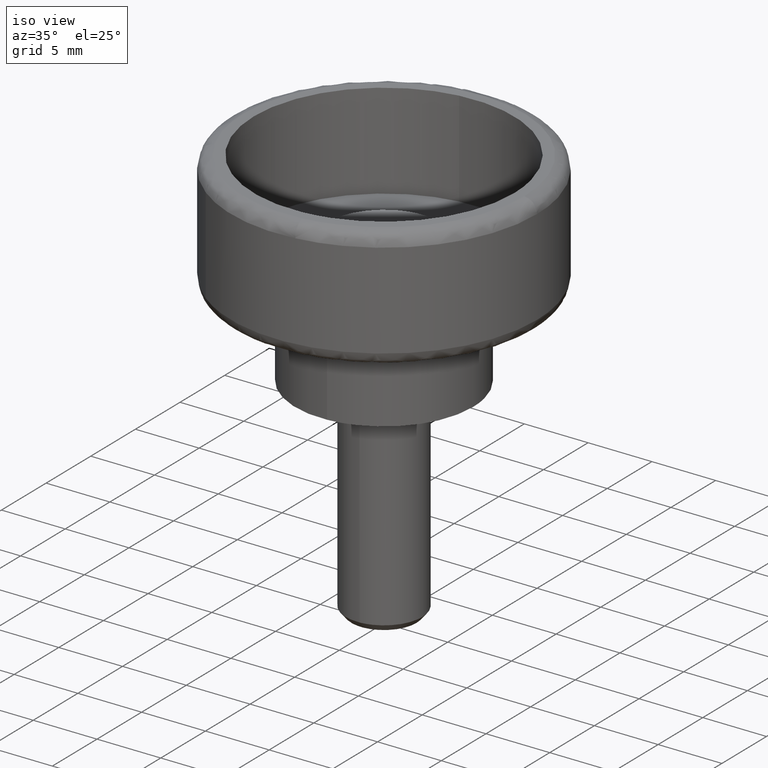
[diagram: clean part render]
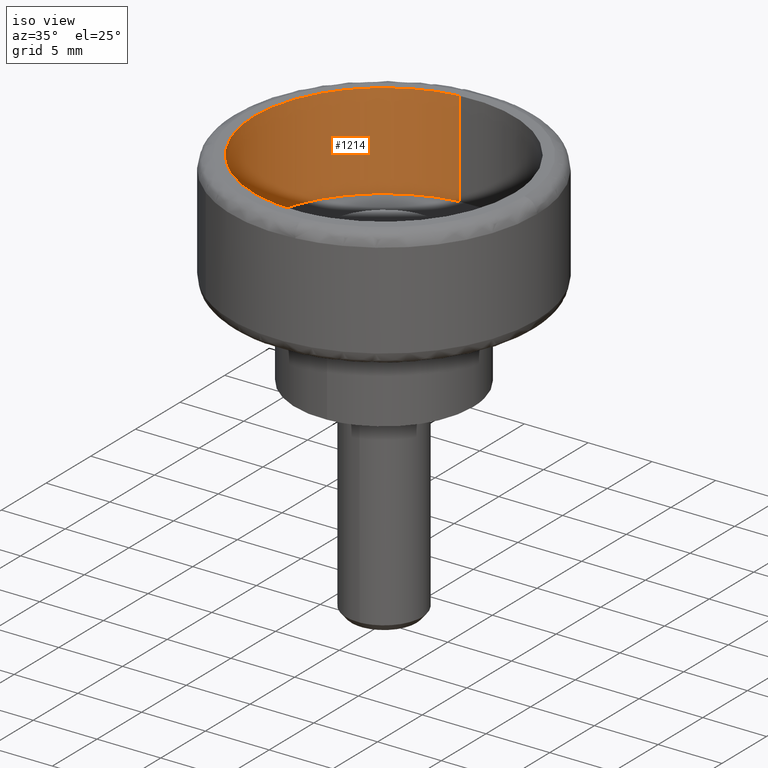
[diagram: same view with one face highlighted and labeled with its STEP entity id]
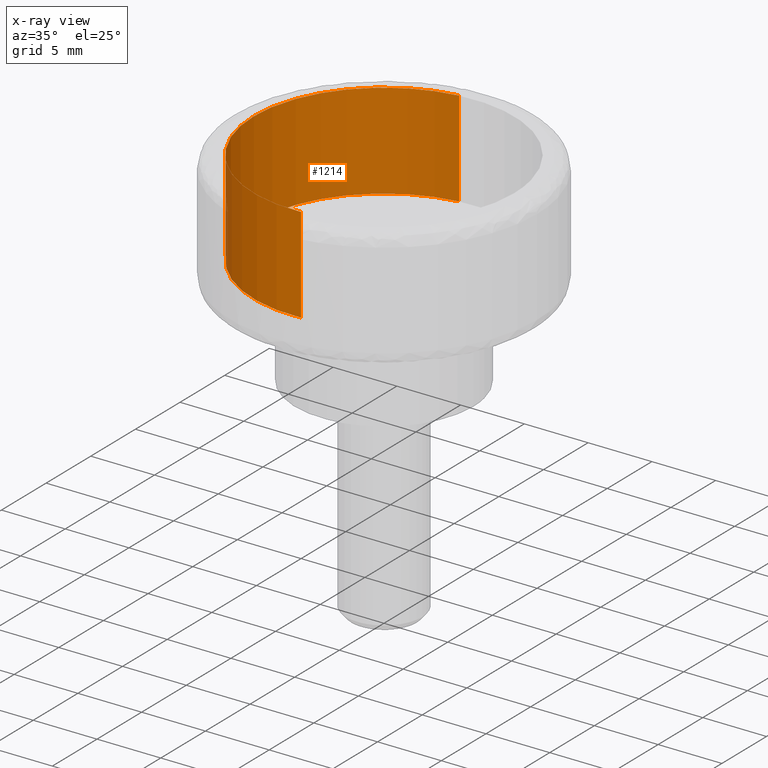
[diagram: x-ray of the same camera — body ghosted, the highlighted face saturated]
A machine part, iso view. The second image highlights one B-rep face of the part: STEP entity #1214.
The next image is the same camera in x-ray: the body ghosted, the highlighted face saturated — about 1% of this face is hidden behind the body in this view.
In plain terms, the highlighted face is a freeform B-spline surface patch.
Its self-contained STEP definition (entity closure, byte-faithful):
#1051=CARTESIAN_POINT('',(-1.203941008824825,10.128698141775279,9.000000000000032));
#1052=VERTEX_POINT('',#1051);
#1070=CARTESIAN_POINT('',(0.622684994504387,-10.180975562170680,8.999999999999988));
#1071=VERTEX_POINT('',#1070);
#1085=CARTESIAN_POINT('',(0.622685119244798,-10.180975554541471,16.500000000000000));
#1086=VERTEX_POINT('',#1085);
#1087=CARTESIAN_POINT('',(0.622685119244798,-10.180975554541471,16.500000000000000));
#1088=CARTESIAN_POINT('',(0.622684994504387,-10.180975562170680,8.999999999999988));
#1089=QUASI_UNIFORM_CURVE('',1,(#1087,#1088),.UNSPECIFIED.,.F.,.U.);
#1090=EDGE_CURVE('',#1086,#1071,#1089,.T.);
#1107=CARTESIAN_POINT('',(-1.203941109764463,10.128698129777231,16.500000000000000));
#1108=VERTEX_POINT('',#1107);
#1124=CARTESIAN_POINT('',(-1.203941109764463,10.128698129777231,16.500000000000000));
#1125=CARTESIAN_POINT('',(-1.203941008824825,10.128698141775279,9.000000000000032));
#1126=QUASI_UNIFORM_CURVE('',1,(#1124,#1125),.UNSPECIFIED.,.F.,.U.);
#1127=EDGE_CURVE('',#1108,#1052,#1126,.T.);
#1132=CARTESIAN_POINT('',(0.622695103255541,-10.180974943903040,16.687500000000000));
#1133=CARTESIAN_POINT('',(-9.558279840647501,-10.803670047158583,16.687500000000011));
#1134=CARTESIAN_POINT('',(-10.180974943903040,-0.622695103255541,16.687500000000000));
#1135=CARTESIAN_POINT('',(-10.769019206671780,8.991743606562912,16.687500000000011));
#1136=CARTESIAN_POINT('',(-1.203949193498937,10.128697168909397,16.687500000000004));
#1137=CARTESIAN_POINT('',(0.622695103255541,-10.180974943903040,8.807812500000001));
#1138=CARTESIAN_POINT('',(-9.558279840647501,-10.803670047158583,8.807812500000001));
#1139=CARTESIAN_POINT('',(-10.180974943903040,-0.622695103255541,8.807812500000001));
#1140=CARTESIAN_POINT('',(-10.769019206671780,8.991743606562912,8.807812500000001));
#1141=CARTESIAN_POINT('',(-1.203949193498937,10.128697168909397,8.807812500000003));
#1149=(BOUNDED_SURFACE()B_SPLINE_SURFACE(2,1,((#1132,#1137),(#1133,#1138),(#1134,#1139),(#1135,#1140),(#1136,#1141)),.UNSPECIFIED.,.F.,.F.,.U.)B_SPLINE_SURFACE_WITH_KNOTS((3,2,3),(2,2),(0.0,16.899913344822281,33.123830155851657),(0.0,7.879687500000004),.UNSPECIFIED.)GEOMETRIC_REPRESENTATION_ITEM()RATIONAL_B_SPLINE_SURFACE(((1.0,1.0),(0.707106781186548,0.707106781186548),(1.0,1.0),(0.718822509939086,0.718822509939086),(0.977505800795127,0.977505800795127)))REPRESENTATION_ITEM('')SURFACE());
#1150=CARTESIAN_POINT('',(-10.199999999999999,0.0,9.0));
#1151=VERTEX_POINT('',#1150);
#1152=CARTESIAN_POINT('',(-10.199999999999999,0.0,9.0));
#1153=CARTESIAN_POINT('',(-10.200000000000001,9.059387536834020,9.0));
#1154=CARTESIAN_POINT('',(-1.203941008824825,10.128698141775276,9.000000000000032));
#1162=(BOUNDED_CURVE()B_SPLINE_CURVE(2,(#1152,#1153,#1154),.UNSPECIFIED.,.F.,.U.)B_SPLINE_CURVE_WITH_KNOTS((3,3),(0.0,0.229562610081736),.UNSPECIFIED.)CURVE()GEOMETRIC_REPRESENTATION_ITEM()RATIONAL_B_SPLINE_CURVE((1.0,0.731050672855771,0.956027021863189))REPRESENTATION_ITEM(''));
#1163=EDGE_CURVE('',#1151,#1052,#1162,.T.);
#1164=ORIENTED_EDGE('',*,*,#1163,.T.);
#1165=ORIENTED_EDGE('',*,*,#1127,.F.);
#1166=CARTESIAN_POINT('',(-10.199999999999999,0.0,16.500000000000000));
#1167=VERTEX_POINT('',#1166);
#1168=CARTESIAN_POINT('',(-10.199999999999999,0.0,16.500000000000000));
#1169=CARTESIAN_POINT('',(-10.199999999999999,9.059387445915270,16.499999999999993));
#1170=CARTESIAN_POINT('',(-1.203941109764462,10.128698129777234,16.500000000000007));
#1178=(BOUNDED_CURVE()B_SPLINE_CURVE(2,(#1168,#1169,#1170),.UNSPECIFIED.,.F.,.U.)B_SPLINE_CURVE_WITH_KNOTS((3,3),(0.0,0.229562608397499),.UNSPECIFIED.)CURVE()GEOMETRIC_REPRESENTATION_ITEM()RATIONAL_B_SPLINE_CURVE((1.0,0.731050674828978,0.956027018562011))REPRESENTATION_ITEM(''));
#1179=EDGE_CURVE('',#1167,#1108,#1178,.T.);
#1180=ORIENTED_EDGE('',*,*,#1179,.F.);
#1181=CARTESIAN_POINT('',(0.622685119244798,-10.180975554541472,16.500000000000000));
#1182=CARTESIAN_POINT('',(0.311633179643514,-10.199999999999999,16.500000000000004));
#1183=CARTESIAN_POINT('',(0.0,-10.199999999999999,16.500000000000000));
#1184=CARTESIAN_POINT('',(-10.200000000000001,-10.200000000000001,16.499999999999993));
#1185=CARTESIAN_POINT('',(-10.199999999999999,0.0,16.500000000000000));
#1193=(BOUNDED_CURVE()B_SPLINE_CURVE(2,(#1181,#1182,#1183,#1184,#1185),.UNSPECIFIED.,.F.,.U.)B_SPLINE_CURVE_WITH_KNOTS((3,2,3),(0.739333131450637,0.750000000000000,1.0),.UNSPECIFIED.)CURVE()GEOMETRIC_REPRESENTATION_ITEM()RATIONAL_B_SPLINE_CURVE((0.976072404319858,0.987502986143669,1.0,0.707106781186548,1.0))REPRESENTATION_ITEM(''));
#1194=EDGE_CURVE('',#1086,#1167,#1193,.T.);
#1195=ORIENTED_EDGE('',*,*,#1194,.F.);
#1196=ORIENTED_EDGE('',*,*,#1090,.T.);
#1197=CARTESIAN_POINT('',(0.622684994504387,-10.180975562170676,8.999999999999988));
#1198=CARTESIAN_POINT('',(0.311633117098438,-10.200000000000005,8.999999999999998));
#1199=CARTESIAN_POINT('',(0.0,-10.199999999999999,9.0));
#1200=CARTESIAN_POINT('',(-10.200000000000001,-10.200000000000001,9.000000000000002));
#1201=CARTESIAN_POINT('',(-10.199999999999999,0.0,9.0));
#1209=(BOUNDED_CURVE()B_SPLINE_CURVE(2,(#1197,#1198,#1199,#1200,#1201),.UNSPECIFIED.,.F.,.U.)B_SPLINE_CURVE_WITH_KNOTS((3,2,3),(0.739333133564734,0.750000000000000,1.0),.UNSPECIFIED.)CURVE()GEOMETRIC_REPRESENTATION_ITEM()RATIONAL_B_SPLINE_CURVE((0.976072408850776,0.987502988620487,1.0,0.707106781186548,1.0))REPRESENTATION_ITEM(''));
#1210=EDGE_CURVE('',#1071,#1151,#1209,.T.);
#1211=ORIENTED_EDGE('',*,*,#1210,.T.);
#1212=EDGE_LOOP('',(#1164,#1165,#1180,#1195,#1196,#1211));
#1213=FACE_OUTER_BOUND('',#1212,.T.);
#1214=ADVANCED_FACE('',(#1213),#1149,.F.);